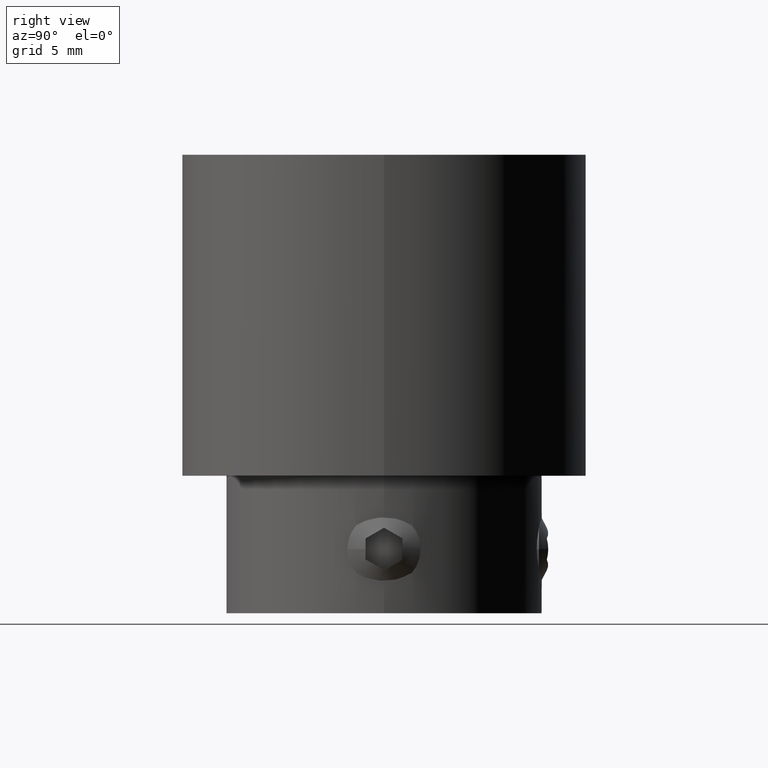
[diagram: clean part render]
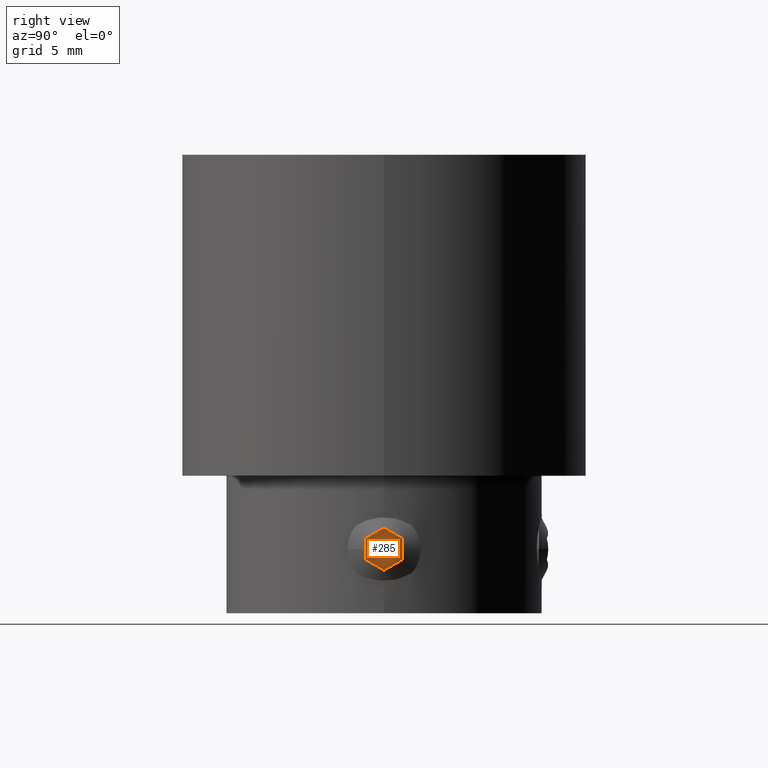
[diagram: same view with one face highlighted and labeled with its STEP entity id]
A machine part, right view. The second image highlights one B-rep face of the part: STEP entity #285.
In plain terms, the highlighted planar face has unit normal (1, 0, 0).
Its self-contained STEP definition (entity closure, byte-faithful):
#285 = ADVANCED_FACE( '', ( #354 ), #355, .T. );
#354 = FACE_OUTER_BOUND( '', #446, .T. );
#355 = PLANE( '', #447 );
#446 = EDGE_LOOP( '', ( #581, #582, #583, #584, #585, #586 ) );
#447 = AXIS2_PLACEMENT_3D( '', #587, #588, #589 );
#581 = ORIENTED_EDGE( '', *, *, #728, .T. );
#582 = ORIENTED_EDGE( '', *, *, #731, .T. );
#583 = ORIENTED_EDGE( '', *, *, #732, .T. );
#584 = ORIENTED_EDGE( '', *, *, #733, .T. );
#585 = ORIENTED_EDGE( '', *, *, #734, .T. );
#586 = ORIENTED_EDGE( '', *, *, #735, .T. );
#587 = CARTESIAN_POINT( '', ( 7.46205955850783, 1.00000000000000, -20.9226497308104 ) );
#588 = DIRECTION( '', ( 1.00000000000000, 0.000000000000000, 0.000000000000000 ) );
#589 = DIRECTION( '', ( 0.000000000000000, 1.00000000000000, 0.000000000000000 ) );
#728 = EDGE_CURVE( '', #808, #806, #809, .T. );
#731 = EDGE_CURVE( '', #806, #811, #813, .T. );
#732 = EDGE_CURVE( '', #811, #814, #815, .T. );
#733 = EDGE_CURVE( '', #814, #816, #817, .T. );
#734 = EDGE_CURVE( '', #816, #818, #819, .T. );
#735 = EDGE_CURVE( '', #818, #808, #820, .T. );
#806 = VERTEX_POINT( '', #1148 );
#808 = VERTEX_POINT( '', #1151 );
#809 = LINE( '', #1152, #1153 );
#811 = VERTEX_POINT( '', #1156 );
#813 = LINE( '', #1159, #1160 );
#814 = VERTEX_POINT( '', #1161 );
#815 = LINE( '', #1162, #1163 );
#816 = VERTEX_POINT( '', #1164 );
#817 = LINE( '', #1165, #1166 );
#818 = VERTEX_POINT( '', #1167 );
#819 = LINE( '', #1168, #1169 );
#820 = LINE( '', #1170, #1171 );
#1148 = CARTESIAN_POINT( '', ( 7.46205955850783, 1.00000000000000, -20.9226497308104 ) );
#1151 = CARTESIAN_POINT( '', ( 7.46205955850783, 1.00000000000000, -22.0773502691896 ) );
#1152 = CARTESIAN_POINT( '', ( 7.46205955850783, 1.00000000000000, -22.0773502691896 ) );
#1153 = VECTOR( '', #1295, 1000.00000000000 );
#1156 = CARTESIAN_POINT( '', ( 7.46205955850783, 0.000000000000000, -20.3452994616207 ) );
#1159 = CARTESIAN_POINT( '', ( 7.46205955850783, 1.00000000000000, -20.9226497308104 ) );
#1160 = VECTOR( '', #1298, 1000.00000000000 );
#1161 = CARTESIAN_POINT( '', ( 7.46205955850783, -1.00000000000000, -20.9226497308104 ) );
#1162 = CARTESIAN_POINT( '', ( 7.46205955850783, 7.07026808030676E-017, -20.3452994616207 ) );
#1163 = VECTOR( '', #1299, 1000.00000000000 );
#1164 = CARTESIAN_POINT( '', ( 7.46205955850783, -1.00000000000000, -22.0773502691896 ) );
#1165 = CARTESIAN_POINT( '', ( 7.46205955850783, -1.00000000000000, -20.9226497308104 ) );
#1166 = VECTOR( '', #1300, 1000.00000000000 );
#1167 = CARTESIAN_POINT( '', ( 7.46205955850783, -2.16840434497101E-016, -22.6547005383793 ) );
#1168 = CARTESIAN_POINT( '', ( 7.46205955850783, -1.00000000000000, -22.0773502691896 ) );
#1169 = VECTOR( '', #1301, 1000.00000000000 );
#1170 = CARTESIAN_POINT( '', ( 7.46205955850783, -2.12108042409203E-016, -22.6547005383793 ) );
#1171 = VECTOR( '', #1302, 1000.00000000000 );
#1295 = DIRECTION( '', ( 0.000000000000000, 3.75578649684290E-016, 1.00000000000000 ) );
#1298 = DIRECTION( '', ( 0.000000000000000, -0.866025403784439, 0.500000000000000 ) );
#1299 = DIRECTION( '', ( 0.000000000000000, -0.866025403784439, -0.500000000000000 ) );
#1300 = DIRECTION( '', ( 0.000000000000000, 1.87789324842145E-016, -1.00000000000000 ) );
#1301 = DIRECTION( '', ( 0.000000000000000, 0.866025403784439, -0.500000000000000 ) );
#1302 = DIRECTION( '', ( 0.000000000000000, 0.866025403784439, 0.500000000000000 ) );